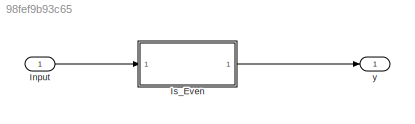
MODEL slx_98fef9b93c65
KIND model
CONFIG AbsTol = auto
CONFIG EnableMultiTasking = off
CONFIG FixedStep = auto
CONFIG MaxStep = auto
CONFIG MinStep = auto
CONFIG RelTol = 1e-3
CONFIG SampleTimeConstraint = Unconstrained
CONFIG SolverName = VariableStepAuto
CONFIG StartTime = 0.0
CONFIG StopTime = 10.0
BLOCK [Inport] Input
  OutDataTypeStr = int32
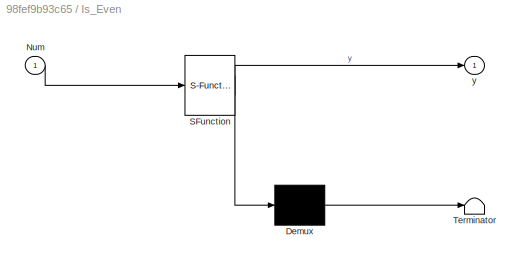
BLOCK [SubSystem] Is_Even
  ErrorFcn = Stateflow.Translate.translate
  PermitHierarchicalResolution = ExplicitOnly
  Ports = [1, 1]
  RequestExecContextInheritance = off
  SFBlockType = MATLAB Function
  TreatAsAtomicUnit = on
BLOCK [Demux] Is_Even/ Demux 
  Outputs = 1
  Ports = [1, 1]
BLOCK [S-Function] Is_Even/ SFunction 
  EnableBusSupport = on
  FunctionName = sf_sfun
  PortCounts = [1 2]
  Ports = [1, 2]
  SFcnIsStateOwnerBlock = off
  SFunctionDeploymentMode = off
  Tag = Stateflow S-Function 2
BLOCK [Terminator] Is_Even/ Terminator 
BLOCK [Inport] Is_Even/Num
BLOCK [Outport] Is_Even/y
BLOCK [Outport] y
LINE Input:1 -> Is_Even:1
LINE Is_Even:1 -> y:1
CHART Is_Even states=1 transitions=1
  STATE_LABEL 'eML_blk_kernel()'
  STATE_LABEL 'SCRIPT:\nfunction y = fcn(Num)\nif mod(Num, 2) == 0\n    y = 1;\n    % means number is even\nelse\n    y = 0;\n    % means number is odd\nend\n'
CHART  states=0 transitions=0
